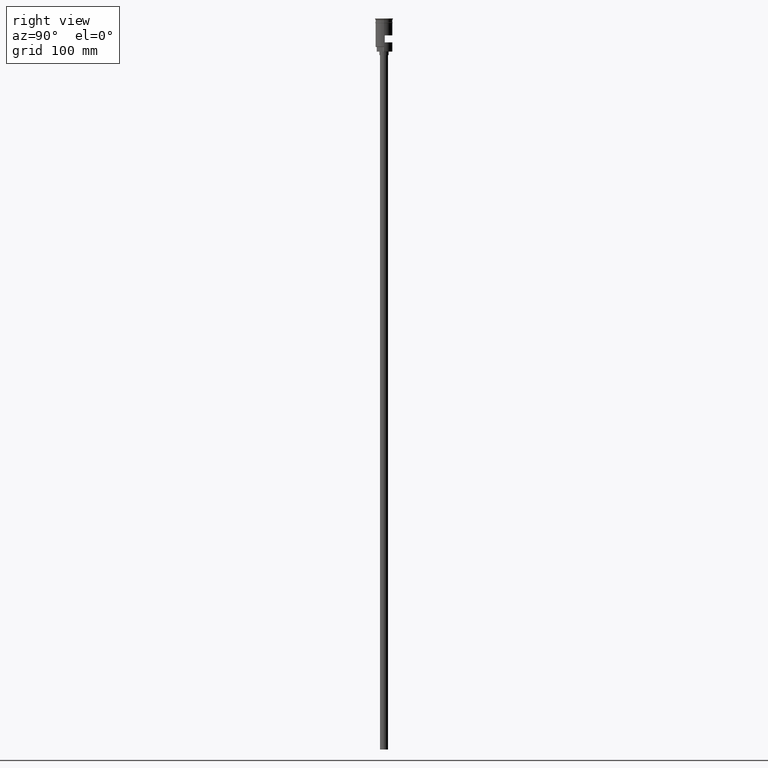
[diagram: clean part render]
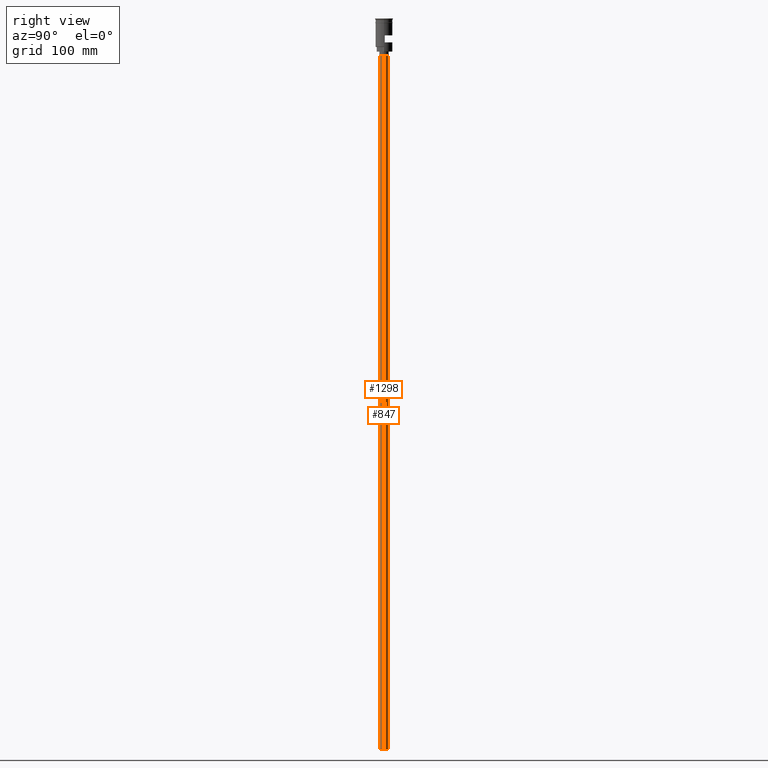
[diagram: same view with one multi-face feature highlighted, each face labeled with its STEP entity id]
A machine part, right view. The highlighted faces form ONE feature: a constant-radius fillet chain: 2 tangent blend faces with common blend radius 3.5 mm. The faces share edges in the B-rep.
Their STEP definitions:
[1] entity #1298 (Cylinder):
#18 = LINE ( 'NONE', #862, #1484 ) ;
#32 = DIRECTION ( 'NONE',  ( -1.000000000000000000, 0.000000000000000000, 0.000000000000000000 ) ) ;
#40 = AXIS2_PLACEMENT_3D ( 'NONE', #1529, #1043, #32 ) ;
#141 = DIRECTION ( 'NONE',  ( -0.000000000000000000, -0.000000000000000000, 1.000000000000000000 ) ) ;
#143 = VERTEX_POINT ( 'NONE', #614 ) ;
#170 = EDGE_CURVE ( 'NONE', #143, #926, #18, .T. ) ;
#235 = DIRECTION ( 'NONE',  ( -1.000000000000000000, 0.000000000000000000, 0.000000000000000000 ) ) ;
#251 = EDGE_CURVE ( 'NONE', #1131, #143, #354, .T. ) ;
#311 = VERTEX_POINT ( 'NONE', #542 ) ;
#354 = CIRCLE ( 'NONE', #40, 3.500000000000000444 ) ;
#480 = CARTESIAN_POINT ( 'NONE',  ( -3.500000000000000444, 4.286263797015737088E-16, -31.50000000000000000 ) ) ;
#536 = ORIENTED_EDGE ( 'NONE', *, *, #170, .F. ) ;
#542 = CARTESIAN_POINT ( 'NONE',  ( 3.500000000000000444, 0.000000000000000000, -31.50000000000000000 ) ) ;
#567 = FACE_OUTER_BOUND ( 'NONE', #1424, .T. ) ;
#575 = DIRECTION ( 'NONE',  ( 0.000000000000000000, 0.000000000000000000, -1.000000000000000000 ) ) ;
#614 = CARTESIAN_POINT ( 'NONE',  ( -3.500000000000000444, 4.286263797015737088E-16, -628.5000000000000000 ) ) ;
#723 = EDGE_CURVE ( 'NONE', #1131, #311, #1528, .T. ) ;
#862 = CARTESIAN_POINT ( 'NONE',  ( -3.500000000000000444, 4.286263797015737088E-16, -628.5000000000000000 ) ) ;
#869 = CIRCLE ( 'NONE', #1385, 3.500000000000000444 ) ;
#923 = AXIS2_PLACEMENT_3D ( 'NONE', #1066, #1561, #1435 ) ;
#926 = VERTEX_POINT ( 'NONE', #480 ) ;
#939 = EDGE_CURVE ( 'NONE', #311, #926, #869, .T. ) ;
#1032 = CARTESIAN_POINT ( 'NONE',  ( 3.500000000000000444, 0.000000000000000000, -628.5000000000000000 ) ) ;
#1041 = ORIENTED_EDGE ( 'NONE', *, *, #251, .F. ) ;
#1043 = DIRECTION ( 'NONE',  ( 0.000000000000000000, 0.000000000000000000, -1.000000000000000000 ) ) ;
#1051 = VECTOR ( 'NONE', #1060, 1000.000000000000000 ) ;
#1060 = DIRECTION ( 'NONE',  ( -0.000000000000000000, -0.000000000000000000, 1.000000000000000000 ) ) ;
#1066 = CARTESIAN_POINT ( 'NONE',  ( 0.000000000000000000, 0.000000000000000000, -628.5000000000000000 ) ) ;
#1082 = CYLINDRICAL_SURFACE ( 'NONE', #923, 3.500000000000000444 ) ;
#1131 = VERTEX_POINT ( 'NONE', #1032 ) ;
#1273 = CARTESIAN_POINT ( 'NONE',  ( 3.500000000000000444, 0.000000000000000000, -628.5000000000000000 ) ) ;
#1298 = ADVANCED_FACE ( 'NONE', ( #567 ), #1082, .T. ) ;
#1355 = ORIENTED_EDGE ( 'NONE', *, *, #939, .T. ) ;
#1385 = AXIS2_PLACEMENT_3D ( 'NONE', #1588, #575, #235 ) ;
#1424 = EDGE_LOOP ( 'NONE', ( #536, #1041, #1515, #1355 ) ) ;
#1435 = DIRECTION ( 'NONE',  ( 1.000000000000000000, 0.000000000000000000, 0.000000000000000000 ) ) ;
#1484 = VECTOR ( 'NONE', #141, 1000.000000000000000 ) ;
#1515 = ORIENTED_EDGE ( 'NONE', *, *, #723, .T. ) ;
#1528 = LINE ( 'NONE', #1273, #1051 ) ;
#1529 = CARTESIAN_POINT ( 'NONE',  ( 0.000000000000000000, 0.000000000000000000, -628.5000000000000000 ) ) ;
#1561 = DIRECTION ( 'NONE',  ( -0.000000000000000000, -0.000000000000000000, 1.000000000000000000 ) ) ;
#1588 = CARTESIAN_POINT ( 'NONE',  ( 0.000000000000000000, 0.000000000000000000, -31.50000000000000000 ) ) ;
[2] entity #847 (Cylinder):
#18 = LINE ( 'NONE', #862, #1484 ) ;
#41 = EDGE_CURVE ( 'NONE', #926, #311, #936, .T. ) ;
#141 = DIRECTION ( 'NONE',  ( -0.000000000000000000, -0.000000000000000000, 1.000000000000000000 ) ) ;
#143 = VERTEX_POINT ( 'NONE', #614 ) ;
#170 = EDGE_CURVE ( 'NONE', #143, #926, #18, .T. ) ;
#311 = VERTEX_POINT ( 'NONE', #542 ) ;
#313 = ORIENTED_EDGE ( 'NONE', *, *, #41, .T. ) ;
#363 = DIRECTION ( 'NONE',  ( 1.000000000000000000, 0.000000000000000000, 0.000000000000000000 ) ) ;
#411 = AXIS2_PLACEMENT_3D ( 'NONE', #1324, #837, #459 ) ;
#459 = DIRECTION ( 'NONE',  ( -1.000000000000000000, 0.000000000000000000, 0.000000000000000000 ) ) ;
#468 = CARTESIAN_POINT ( 'NONE',  ( 0.000000000000000000, 0.000000000000000000, -628.5000000000000000 ) ) ;
#480 = CARTESIAN_POINT ( 'NONE',  ( -3.500000000000000444, 4.286263797015737088E-16, -31.50000000000000000 ) ) ;
#484 = CIRCLE ( 'NONE', #411, 3.500000000000000444 ) ;
#516 = ORIENTED_EDGE ( 'NONE', *, *, #170, .T. ) ;
#542 = CARTESIAN_POINT ( 'NONE',  ( 3.500000000000000444, 0.000000000000000000, -31.50000000000000000 ) ) ;
#595 = DIRECTION ( 'NONE',  ( -0.000000000000000000, -0.000000000000000000, 1.000000000000000000 ) ) ;
#614 = CARTESIAN_POINT ( 'NONE',  ( -3.500000000000000444, 4.286263797015737088E-16, -628.5000000000000000 ) ) ;
#624 = ORIENTED_EDGE ( 'NONE', *, *, #723, .F. ) ;
#682 = ORIENTED_EDGE ( 'NONE', *, *, #852, .F. ) ;
#711 = FACE_OUTER_BOUND ( 'NONE', #970, .T. ) ;
#723 = EDGE_CURVE ( 'NONE', #1131, #311, #1528, .T. ) ;
#837 = DIRECTION ( 'NONE',  ( 0.000000000000000000, 0.000000000000000000, -1.000000000000000000 ) ) ;
#847 = ADVANCED_FACE ( 'NONE', ( #711 ), #971, .T. ) ;
#852 = EDGE_CURVE ( 'NONE', #143, #1131, #484, .T. ) ;
#862 = CARTESIAN_POINT ( 'NONE',  ( -3.500000000000000444, 4.286263797015737088E-16, -628.5000000000000000 ) ) ;
#920 = AXIS2_PLACEMENT_3D ( 'NONE', #468, #595, #363 ) ;
#926 = VERTEX_POINT ( 'NONE', #480 ) ;
#936 = CIRCLE ( 'NONE', #1407, 3.500000000000000444 ) ;
#970 = EDGE_LOOP ( 'NONE', ( #682, #516, #313, #624 ) ) ;
#971 = CYLINDRICAL_SURFACE ( 'NONE', #920, 3.500000000000000444 ) ;
#1032 = CARTESIAN_POINT ( 'NONE',  ( 3.500000000000000444, 0.000000000000000000, -628.5000000000000000 ) ) ;
#1051 = VECTOR ( 'NONE', #1060, 1000.000000000000000 ) ;
#1060 = DIRECTION ( 'NONE',  ( -0.000000000000000000, -0.000000000000000000, 1.000000000000000000 ) ) ;
#1131 = VERTEX_POINT ( 'NONE', #1032 ) ;
#1173 = DIRECTION ( 'NONE',  ( 0.000000000000000000, 0.000000000000000000, -1.000000000000000000 ) ) ;
#1187 = DIRECTION ( 'NONE',  ( -1.000000000000000000, 0.000000000000000000, 0.000000000000000000 ) ) ;
#1273 = CARTESIAN_POINT ( 'NONE',  ( 3.500000000000000444, 0.000000000000000000, -628.5000000000000000 ) ) ;
#1324 = CARTESIAN_POINT ( 'NONE',  ( 0.000000000000000000, 0.000000000000000000, -628.5000000000000000 ) ) ;
#1407 = AXIS2_PLACEMENT_3D ( 'NONE', #1429, #1173, #1187 ) ;
#1429 = CARTESIAN_POINT ( 'NONE',  ( 0.000000000000000000, 0.000000000000000000, -31.50000000000000000 ) ) ;
#1484 = VECTOR ( 'NONE', #141, 1000.000000000000000 ) ;
#1528 = LINE ( 'NONE', #1273, #1051 ) ;